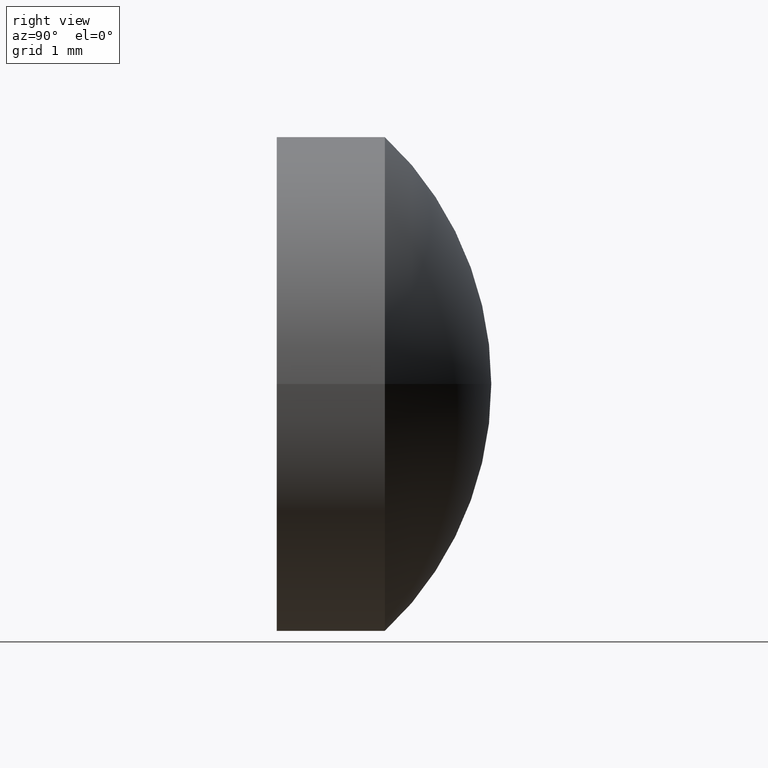
[diagram: clean part render]
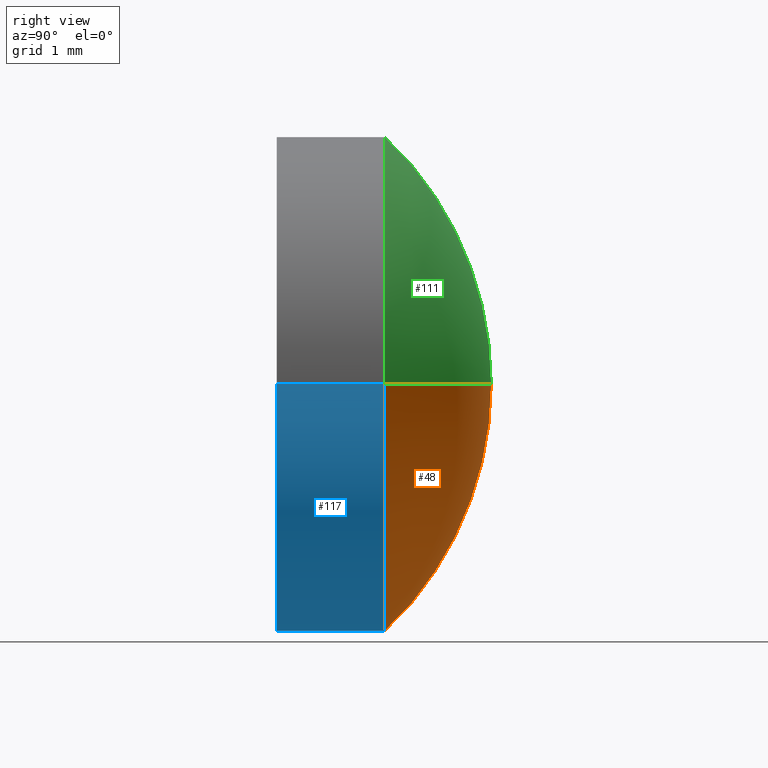
[diagram: same view with three faces highlighted in distinct colors, each labeled with its STEP entity id]
A machine part, right view with three faces highlighted in distinct colors.
Their STEP definitions:

[orange] entity #48 — the highlighted toroidal blend (fillet) surface has major radius 0.0015 mm and minor (blend) radius 4.13 mm.
#2 = FACE_OUTER_BOUND ( 'NONE', #121, .T. ) ;
#13 = EDGE_CURVE ( 'NONE', #152, #104, #35, .T. ) ;
#20 = CARTESIAN_POINT ( 'NONE',  ( -2.999999999999998668, 1.309999999999999609, 0.000000000000000000 ) ) ;
#26 = CIRCLE ( 'NONE', #47, 4.129999999999999005 ) ;
#30 = CIRCLE ( 'NONE', #144, 3.000000000000000000 ) ;
#33 = DIRECTION ( 'NONE',  ( -1.000000000000000000, 7.230126294966106081E-16, 0.000000000000000000 ) ) ;
#35 = CIRCLE ( 'NONE', #150, 4.129999999999999005 ) ;
#43 = CARTESIAN_POINT ( 'NONE',  ( -1.106225029114116243E-15, -1.529999745421605217, 0.000000000000000000 ) ) ;
#46 = DIRECTION ( 'NONE',  ( -1.224646799147353207E-16, 8.854351024561353541E-32, 1.000000000000000000 ) ) ;
#47 = AXIS2_PLACEMENT_3D ( 'NONE', #49, #51, #175 ) ;
#48 = ADVANCED_FACE ( 'NONE', ( #2 ), #56, .T. ) ;
#49 = CARTESIAN_POINT ( 'NONE',  ( -0.001450109468708465910, -1.529999745421605217, 0.000000000000000000 ) ) ;
#51 = DIRECTION ( 'NONE',  ( -0.000000000000000000, 0.000000000000000000, -1.000000000000000000 ) ) ;
#56 = TOROIDAL_SURFACE ( 'NONE', #174, 0.001450109468707359590, 4.129999999999999005 ) ;
#57 = ORIENTED_EDGE ( 'NONE', *, *, #158, .T. ) ;
#88 = CARTESIAN_POINT ( 'NONE',  ( 0.001450109468706253487, -1.529999745421605217, 1.775871919265736998E-19 ) ) ;
#92 = CARTESIAN_POINT ( 'NONE',  ( 9.471465446405579432E-16, 1.309999999999997389, 0.000000000000000000 ) ) ;
#104 = VERTEX_POINT ( 'NONE', #109 ) ;
#109 = CARTESIAN_POINT ( 'NONE',  ( 1.879832836691187522E-15, 2.600000000000000089, 0.000000000000000000 ) ) ;
#120 = ORIENTED_EDGE ( 'NONE', *, *, #13, .F. ) ;
#121 = EDGE_LOOP ( 'NONE', ( #120, #168, #57 ) ) ;
#144 = AXIS2_PLACEMENT_3D ( 'NONE', #92, #161, #178 ) ;
#150 = AXIS2_PLACEMENT_3D ( 'NONE', #88, #46, #154 ) ;
#152 = VERTEX_POINT ( 'NONE', #189 ) ;
#154 = DIRECTION ( 'NONE',  ( 1.000000000000000000, 0.000000000000000000, 1.224646799147353207E-16 ) ) ;
#158 = EDGE_CURVE ( 'NONE', #184, #104, #26, .T. ) ;
#161 = DIRECTION ( 'NONE',  ( 7.230126294966106081E-16, 1.000000000000000000, -0.000000000000000000 ) ) ;
#168 = ORIENTED_EDGE ( 'NONE', *, *, #172, .T. ) ;
#171 = DIRECTION ( 'NONE',  ( 7.230126294966106081E-16, 1.000000000000000000, -0.000000000000000000 ) ) ;
#172 = EDGE_CURVE ( 'NONE', #152, #184, #30, .T. ) ;
#174 = AXIS2_PLACEMENT_3D ( 'NONE', #43, #171, #33 ) ;
#175 = DIRECTION ( 'NONE',  ( -1.000000000000000000, 0.000000000000000000, 0.000000000000000000 ) ) ;
#178 = DIRECTION ( 'NONE',  ( -1.000000000000000000, 7.228014483236696555E-16, 0.000000000000000000 ) ) ;
#184 = VERTEX_POINT ( 'NONE', #20 ) ;
#189 = CARTESIAN_POINT ( 'NONE',  ( 3.000000000000000888, 1.309999999999995168, 3.673940397442059375E-16 ) ) ;

[blue] entity #117 — the highlighted cylindrical surface (partial cylindrical patch) has radius 3 mm, axis along (0, 1, -0).
#6 = DIRECTION ( 'NONE',  ( -1.000000000000000000, 7.228014483236697541E-16, 0.000000000000000000 ) ) ;
#16 = CARTESIAN_POINT ( 'NONE',  ( -2.999999999999997780, 2.600000000000001865, 0.000000000000000000 ) ) ;
#20 = CARTESIAN_POINT ( 'NONE',  ( -2.999999999999998668, 1.309999999999999609, 0.000000000000000000 ) ) ;
#30 = CIRCLE ( 'NONE', #144, 3.000000000000000000 ) ;
#36 = CARTESIAN_POINT ( 'NONE',  ( -2.999999999999999112, -4.330473254753795076E-16, 0.000000000000000000 ) ) ;
#44 = DIRECTION ( 'NONE',  ( 7.230126294966106081E-16, 1.000000000000000000, -0.000000000000000000 ) ) ;
#60 = CYLINDRICAL_SURFACE ( 'NONE', #87, 2.999999999999999556 ) ;
#73 = DIRECTION ( 'NONE',  ( -1.000000000000000000, 7.230126294966107067E-16, 0.000000000000000000 ) ) ;
#74 = EDGE_CURVE ( 'NONE', #122, #169, #91, .T. ) ;
#77 = CARTESIAN_POINT ( 'NONE',  ( 3.000000000000001332, 2.599999999999997868, 3.673940397442059375E-16 ) ) ;
#78 = LINE ( 'NONE', #16, #153 ) ;
#87 = AXIS2_PLACEMENT_3D ( 'NONE', #145, #157, #6 ) ;
#90 = EDGE_CURVE ( 'NONE', #122, #152, #94, .T. ) ;
#91 = CIRCLE ( 'NONE', #116, 2.999999999999999112 ) ;
#92 = CARTESIAN_POINT ( 'NONE',  ( 9.471465446405579432E-16, 1.309999999999997389, 0.000000000000000000 ) ) ;
#94 = LINE ( 'NONE', #77, #112 ) ;
#112 = VECTOR ( 'NONE', #173, 1000.000000000000000 ) ;
#115 = EDGE_LOOP ( 'NONE', ( #155, #167, #140, #136 ) ) ;
#116 = AXIS2_PLACEMENT_3D ( 'NONE', #156, #44, #73 ) ;
#117 = ADVANCED_FACE ( 'NONE', ( #127 ), #60, .T. ) ;
#122 = VERTEX_POINT ( 'NONE', #124 ) ;
#124 = CARTESIAN_POINT ( 'NONE',  ( 2.999999999999999112, -4.771123102455041973E-15, 3.673940397442059375E-16 ) ) ;
#127 = FACE_OUTER_BOUND ( 'NONE', #115, .T. ) ;
#136 = ORIENTED_EDGE ( 'NONE', *, *, #172, .F. ) ;
#140 = ORIENTED_EDGE ( 'NONE', *, *, #198, .T. ) ;
#144 = AXIS2_PLACEMENT_3D ( 'NONE', #92, #161, #178 ) ;
#145 = CARTESIAN_POINT ( 'NONE',  ( 1.879832836691187522E-15, 2.600000000000000089, 0.000000000000000000 ) ) ;
#148 = DIRECTION ( 'NONE',  ( 7.230126294966106081E-16, 1.000000000000000000, -0.000000000000000000 ) ) ;
#152 = VERTEX_POINT ( 'NONE', #189 ) ;
#153 = VECTOR ( 'NONE', #148, 1000.000000000000000 ) ;
#155 = ORIENTED_EDGE ( 'NONE', *, *, #90, .F. ) ;
#156 = CARTESIAN_POINT ( 'NONE',  ( -1.925929944387235853E-30, -2.602085213965210642E-15, 0.000000000000000000 ) ) ;
#157 = DIRECTION ( 'NONE',  ( 7.230126294966106081E-16, 1.000000000000000000, -0.000000000000000000 ) ) ;
#161 = DIRECTION ( 'NONE',  ( 7.230126294966106081E-16, 1.000000000000000000, -0.000000000000000000 ) ) ;
#167 = ORIENTED_EDGE ( 'NONE', *, *, #74, .T. ) ;
#169 = VERTEX_POINT ( 'NONE', #36 ) ;
#172 = EDGE_CURVE ( 'NONE', #152, #184, #30, .T. ) ;
#173 = DIRECTION ( 'NONE',  ( 7.230126294966106081E-16, 1.000000000000000000, -0.000000000000000000 ) ) ;
#178 = DIRECTION ( 'NONE',  ( -1.000000000000000000, 7.228014483236696555E-16, 0.000000000000000000 ) ) ;
#184 = VERTEX_POINT ( 'NONE', #20 ) ;
#189 = CARTESIAN_POINT ( 'NONE',  ( 3.000000000000000888, 1.309999999999995168, 3.673940397442059375E-16 ) ) ;
#198 = EDGE_CURVE ( 'NONE', #169, #184, #78, .T. ) ;

[green] entity #111 — the highlighted toroidal blend (fillet) surface has major radius 0.0015 mm and minor (blend) radius 4.13 mm.
#3 = DIRECTION ( 'NONE',  ( -1.000000000000000000, 7.228014483236696555E-16, 0.000000000000000000 ) ) ;
#5 = AXIS2_PLACEMENT_3D ( 'NONE', #107, #159, #75 ) ;
#13 = EDGE_CURVE ( 'NONE', #152, #104, #35, .T. ) ;
#14 = CARTESIAN_POINT ( 'NONE',  ( 9.471465446405579432E-16, 1.309999999999997389, 0.000000000000000000 ) ) ;
#20 = CARTESIAN_POINT ( 'NONE',  ( -2.999999999999998668, 1.309999999999999609, 0.000000000000000000 ) ) ;
#26 = CIRCLE ( 'NONE', #47, 4.129999999999999005 ) ;
#35 = CIRCLE ( 'NONE', #150, 4.129999999999999005 ) ;
#46 = DIRECTION ( 'NONE',  ( -1.224646799147353207E-16, 8.854351024561353541E-32, 1.000000000000000000 ) ) ;
#47 = AXIS2_PLACEMENT_3D ( 'NONE', #49, #51, #175 ) ;
#49 = CARTESIAN_POINT ( 'NONE',  ( -0.001450109468708465910, -1.529999745421605217, 0.000000000000000000 ) ) ;
#51 = DIRECTION ( 'NONE',  ( -0.000000000000000000, 0.000000000000000000, -1.000000000000000000 ) ) ;
#63 = FACE_OUTER_BOUND ( 'NONE', #138, .T. ) ;
#68 = ORIENTED_EDGE ( 'NONE', *, *, #13, .T. ) ;
#75 = DIRECTION ( 'NONE',  ( -1.000000000000000000, 7.230126294966106081E-16, 0.000000000000000000 ) ) ;
#84 = EDGE_CURVE ( 'NONE', #184, #152, #164, .T. ) ;
#85 = ORIENTED_EDGE ( 'NONE', *, *, #84, .T. ) ;
#88 = CARTESIAN_POINT ( 'NONE',  ( 0.001450109468706253487, -1.529999745421605217, 1.775871919265736998E-19 ) ) ;
#100 = TOROIDAL_SURFACE ( 'NONE', #5, 0.001450109468707359590, 4.129999999999999005 ) ;
#104 = VERTEX_POINT ( 'NONE', #109 ) ;
#106 = DIRECTION ( 'NONE',  ( 7.230126294966106081E-16, 1.000000000000000000, -0.000000000000000000 ) ) ;
#107 = CARTESIAN_POINT ( 'NONE',  ( -1.106225029114116243E-15, -1.529999745421605217, 0.000000000000000000 ) ) ;
#109 = CARTESIAN_POINT ( 'NONE',  ( 1.879832836691187522E-15, 2.600000000000000089, 0.000000000000000000 ) ) ;
#111 = ADVANCED_FACE ( 'NONE', ( #63 ), #100, .T. ) ;
#119 = ORIENTED_EDGE ( 'NONE', *, *, #158, .F. ) ;
#137 = AXIS2_PLACEMENT_3D ( 'NONE', #14, #106, #3 ) ;
#138 = EDGE_LOOP ( 'NONE', ( #85, #68, #119 ) ) ;
#150 = AXIS2_PLACEMENT_3D ( 'NONE', #88, #46, #154 ) ;
#152 = VERTEX_POINT ( 'NONE', #189 ) ;
#154 = DIRECTION ( 'NONE',  ( 1.000000000000000000, 0.000000000000000000, 1.224646799147353207E-16 ) ) ;
#158 = EDGE_CURVE ( 'NONE', #184, #104, #26, .T. ) ;
#159 = DIRECTION ( 'NONE',  ( 7.230126294966106081E-16, 1.000000000000000000, -0.000000000000000000 ) ) ;
#164 = CIRCLE ( 'NONE', #137, 3.000000000000000000 ) ;
#175 = DIRECTION ( 'NONE',  ( -1.000000000000000000, 0.000000000000000000, 0.000000000000000000 ) ) ;
#184 = VERTEX_POINT ( 'NONE', #20 ) ;
#189 = CARTESIAN_POINT ( 'NONE',  ( 3.000000000000000888, 1.309999999999995168, 3.673940397442059375E-16 ) ) ;